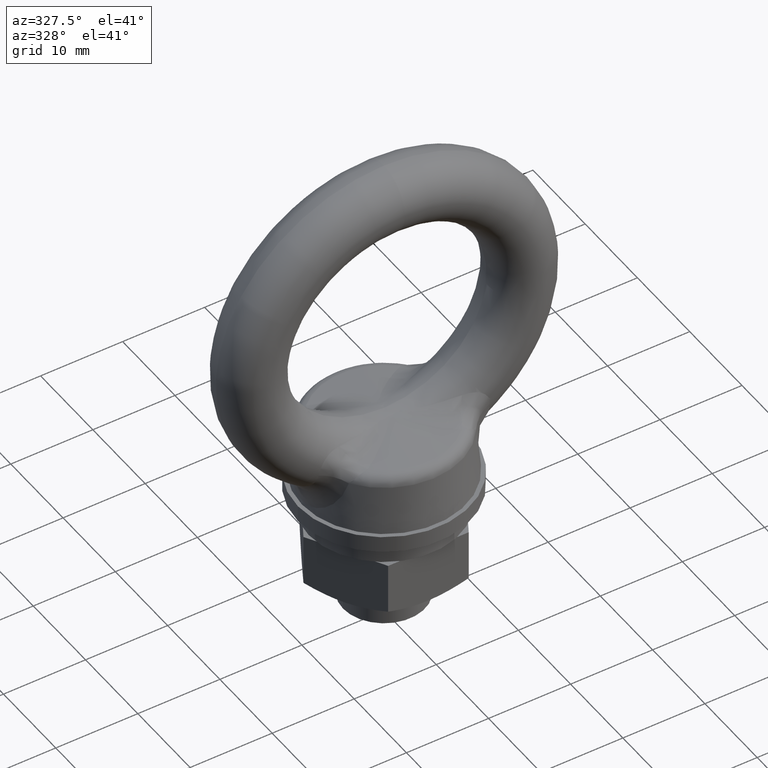
[diagram: clean part render]
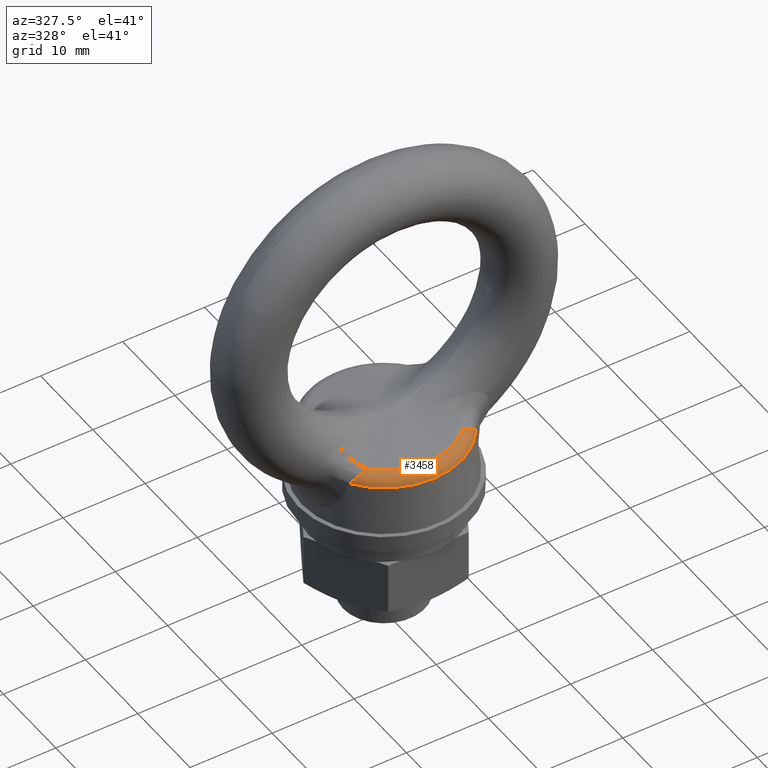
[diagram: same view with one face highlighted and labeled with its STEP entity id]
A machine part, auxiliary view. The second image highlights one B-rep face of the part: STEP entity #3458.
In plain terms, the highlighted toroidal blend (fillet) surface has major radius 7.9953 mm and minor (blend) radius 1.5 mm.
Its self-contained STEP definition (entity closure, byte-faithful):
#2501 = DIRECTION ( 'NONE',  ( 1.000000000000000000, 0.0000000000000000000, 0.0000000000000000000 ) ) ;
#2502 = DIRECTION ( 'NONE',  ( 0.0000000000000000000, 0.0000000000000000000, 1.000000000000000000 ) ) ;
#2503 = CARTESIAN_POINT ( 'NONE',  ( 0.0000000000000000000, 0.0000000000000000000, -13.81535031278956000 ) ) ;
#2504 = AXIS2_PLACEMENT_3D ( 'NONE', #2503, #2502, #2501 ) ;
#2505 = CIRCLE ( 'NONE', #2504, 8.231947182446498700 ) ;
#2608 = CARTESIAN_POINT ( 'NONE',  ( -7.760410120876260400, -5.461485613272089700, -15.16582361561554900 ) ) ;
#2609 = CARTESIAN_POINT ( 'NONE',  ( -7.663399209687748100, -5.575138505293577600, -15.00667800274997000 ) ) ;
#2610 = CARTESIAN_POINT ( 'NONE',  ( -7.545127001883411600, -5.670713862927121900, -14.85302455702406400 ) ) ;
#2611 = CARTESIAN_POINT ( 'NONE',  ( -7.265782746112708200, -5.820619814645433500, -14.55381830161587000 ) ) ;
#2612 = CARTESIAN_POINT ( 'NONE',  ( -7.108959587712585700, -5.872051642121530100, -14.41306535481343700 ) ) ;
#2613 = CARTESIAN_POINT ( 'NONE',  ( -6.758989168251386700, -5.926642523728499000, -14.15938085509210100 ) ) ;
#2614 = CARTESIAN_POINT ( 'NONE',  ( -6.570643268779092800, -5.927421675435817300, -14.05035679601300600 ) ) ;
#2615 = CARTESIAN_POINT ( 'NONE',  ( -6.166429667270519700, -5.908207382932203300, -13.88771093265419400 ) ) ;
#2616 = CARTESIAN_POINT ( 'NONE',  ( -5.955478270992723600, -5.891241625290826200, -13.83827599578849300 ) ) ;
#2617 = CARTESIAN_POINT ( 'NONE',  ( -5.738277239094090400, -5.902298598163569400, -13.81535031278956000 ) ) ;
#2618 = B_SPLINE_CURVE_WITH_KNOTS ( 'NONE', 3,
 ( #2617, #2616, #2615, #2614, #2613, #2612, #2611, #2610, #2609, #2608 ),
 .UNSPECIFIED., .F., .F.,
 ( 4, 2, 2, 2, 4 ),
 ( 0.0000000000000000000, 0.0006489457255814089200, 0.001297891451162817800, 0.001946837176744226800, 0.002595782902325635700 ),
 .UNSPECIFIED. ) ;
#2620 = CARTESIAN_POINT ( 'NONE',  ( 5.738277239094090400, -5.902298598163569400, -13.81535031278956000 ) ) ;
#2621 = CARTESIAN_POINT ( 'NONE',  ( -5.738277239094090400, -5.902298598163569400, -13.81535031278956000 ) ) ;
#3343 = EDGE_CURVE ( 'NONE', #3344, #3345, #2505, .T. ) ;
#3344 = VERTEX_POINT ( 'NONE', #2621 ) ;
#3345 = VERTEX_POINT ( 'NONE', #2620 ) ;
#3346 = ORIENTED_EDGE ( 'NONE', *, *, #3343, .F. ) ;
#3347 = ORIENTED_EDGE ( 'NONE', *, *, #3348, .T. ) ;
#3348 = EDGE_CURVE ( 'NONE', #3344, #3454, #2618, .T. ) ;
#3451 = VERTEX_POINT ( 'NONE', #5801 ) ;
#3453 = EDGE_CURVE ( 'NONE', #3451, #3454, #5776, .T. ) ;
#3454 = VERTEX_POINT ( 'NONE', #5777 ) ;
#3458 = ADVANCED_FACE ( 'NONE', ( #5746 ), #5748, .T. ) ;
#3459 = EDGE_LOOP ( 'NONE', ( #3460, #3461, #3346, #3347 ) ) ;
#3460 = ORIENTED_EDGE ( 'NONE', *, *, #3453, .F. ) ;
#3461 = ORIENTED_EDGE ( 'NONE', *, *, #3462, .T. ) ;
#3462 = EDGE_CURVE ( 'NONE', #3451, #3345, #5723, .T. ) ;
#5708 = CARTESIAN_POINT ( 'NONE',  ( 5.738277239094090400, -5.902298598163569400, -13.81535031278956000 ) ) ;
#5709 = CARTESIAN_POINT ( 'NONE',  ( 5.955701795732194300, -5.891230246399215900, -13.83829958894209400 ) ) ;
#5710 = CARTESIAN_POINT ( 'NONE',  ( 6.165120129816215500, -5.908085395352477700, -13.88745976686825400 ) ) ;
#5711 = CARTESIAN_POINT ( 'NONE',  ( 6.466491116976688300, -5.922500116127396000, -14.00831314671328100 ) ) ;
#5712 = CARTESIAN_POINT ( 'NONE',  ( 6.565290063302951400, -5.925234134275467700, -14.05635781975000700 ) ) ;
#5713 = CARTESIAN_POINT ( 'NONE',  ( 6.753845663793439900, -5.920515924516539700, -14.16279372250662000 ) ) ;
#5714 = CARTESIAN_POINT ( 'NONE',  ( 6.844339240862091800, -5.913202836315317500, -14.22138131700170400 ) ) ;
#5715 = CARTESIAN_POINT ( 'NONE',  ( 7.105868058312067200, -5.872780963033085800, -14.41056510365524600 ) ) ;
#5716 = CARTESIAN_POINT ( 'NONE',  ( 7.264731714705562600, -5.820942184945743700, -14.55290027317475700 ) ) ;
#5717 = CARTESIAN_POINT ( 'NONE',  ( 7.543092489526348000, -5.672044638866863900, -14.85063994365649300 ) ) ;
#5718 = CARTESIAN_POINT ( 'NONE',  ( 7.663354475831887700, -5.575190913131304900, -15.00660461722228500 ) ) ;
#5719 = CARTESIAN_POINT ( 'NONE',  ( 7.760410120876260400, -5.461485613272089700, -15.16582361561554900 ) ) ;
#5723 = B_SPLINE_CURVE_WITH_KNOTS ( 'NONE', 3,
 ( #5719, #5718, #5717, #5716, #5715, #5714, #5713, #5712, #5711, #5710, #5709, #5708 ),
 .UNSPECIFIED., .F., .F.,
 ( 4, 2, 2, 2, 2, 4 ),
 ( 4.670885906470169200E-018, 0.0006516634225218154100, 0.001303326845043626300, 0.001629158556304530800, 0.001954990267565434900, 0.002606653690087241300 ),
 .UNSPECIFIED. ) ;
#5746 = FACE_OUTER_BOUND ( 'NONE', #3459, .T. ) ;
#5748 = TOROIDAL_SURFACE ( 'NONE', #5753, 7.995270432617738600, 1.500000000000000000 ) ;
#5750 = DIRECTION ( 'NONE',  ( 1.000000000000000000, 0.0000000000000000000, 0.0000000000000000000 ) ) ;
#5751 = DIRECTION ( 'NONE',  ( 0.0000000000000000000, 0.0000000000000000000, 1.000000000000000000 ) ) ;
#5752 = CARTESIAN_POINT ( 'NONE',  ( 0.0000000000000000000, 0.0000000000000000000, -15.29656066790139900 ) ) ;
#5753 = AXIS2_PLACEMENT_3D ( 'NONE', #5752, #5751, #5750 ) ;
#5772 = DIRECTION ( 'NONE',  ( 1.000000000000000000, 0.0000000000000000000, 0.0000000000000000000 ) ) ;
#5773 = DIRECTION ( 'NONE',  ( 0.0000000000000000000, 0.0000000000000000000, -1.000000000000000000 ) ) ;
#5774 = CARTESIAN_POINT ( 'NONE',  ( 0.0000000000000000000, 0.0000000000000000000, -15.16582361561554900 ) ) ;
#5775 = AXIS2_PLACEMENT_3D ( 'NONE', #5774, #5773, #5772 ) ;
#5776 = CIRCLE ( 'NONE', #5775, 9.489562178950970800 ) ;
#5777 = CARTESIAN_POINT ( 'NONE',  ( -7.760410120876260400, -5.461485613272089700, -15.16582361561554900 ) ) ;
#5801 = CARTESIAN_POINT ( 'NONE',  ( 7.760410120876260400, -5.461485613272089700, -15.16582361561554900 ) ) ;